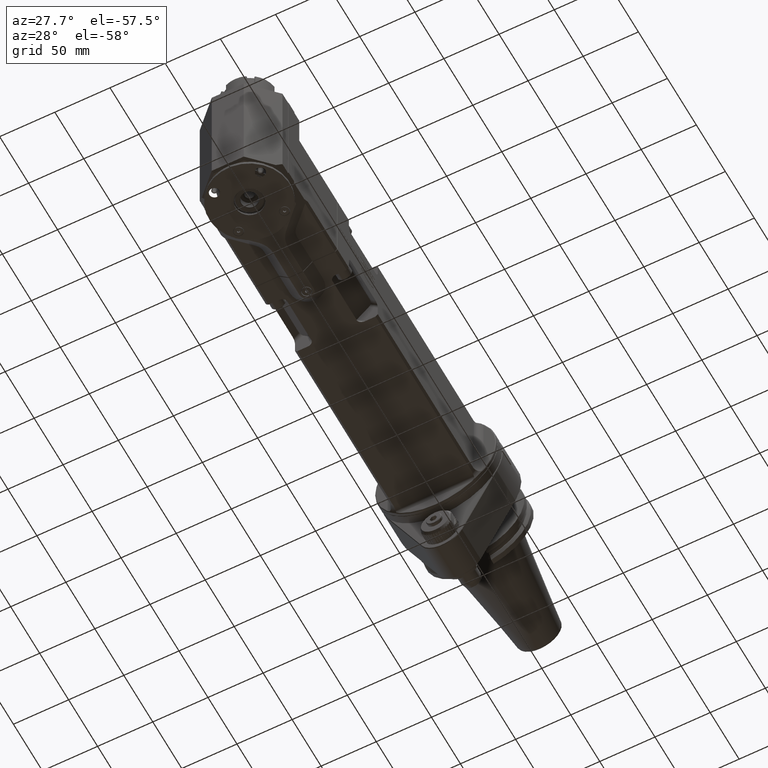
[diagram: clean part render]
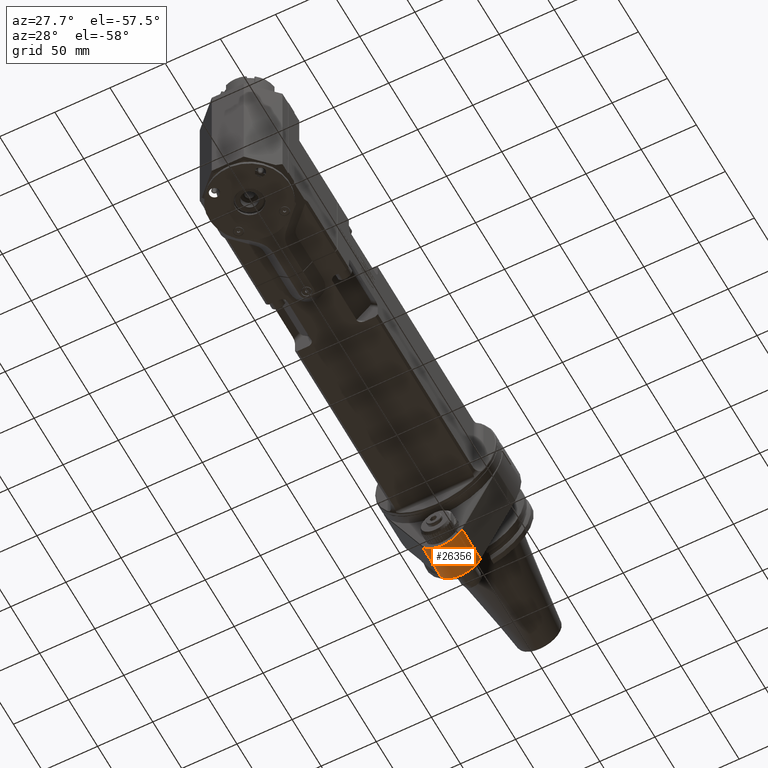
[diagram: same view with one face highlighted and labeled with its STEP entity id]
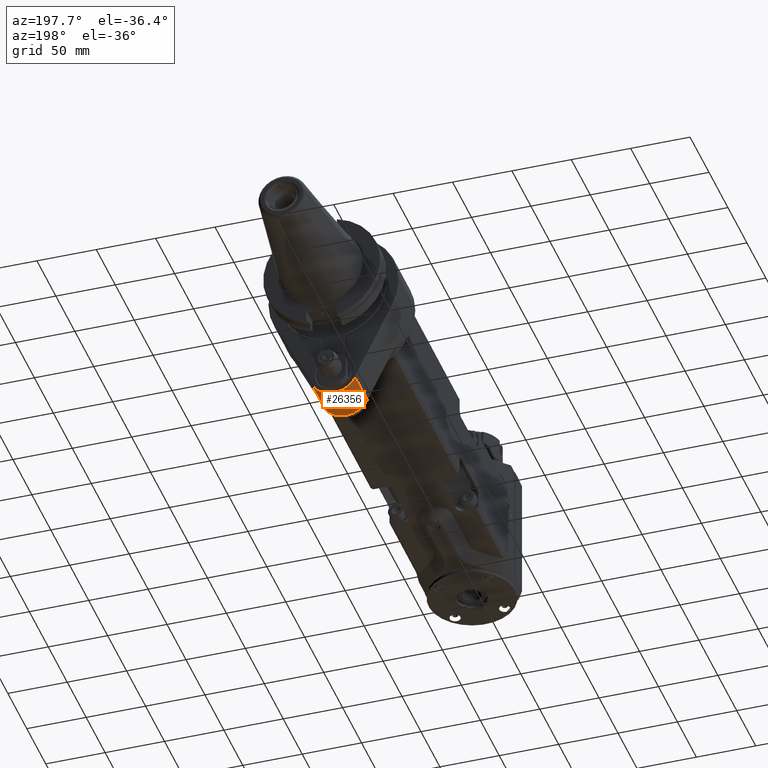
[diagram: same view with one face highlighted and labeled with its STEP entity id]
A machine part, auxiliary view. The second image highlights one B-rep face of the part: STEP entity #26356.
A second angle (auxiliary view) of the same face is appended — the face is thin or edge-on in the first view.
In plain terms, the highlighted cylindrical surface (edge-blend (fillet) strip) has radius 20 mm, axis along (0, 1, 0).
Its self-contained STEP definition (entity closure, byte-faithful):
#3073=LINE('',#52276,#5158);
#3260=LINE('',#53782,#5345);
#5158=VECTOR('',#34415,31.9997523659797);
#5345=VECTOR('',#35152,31.9997524776297);
#5834=CYLINDRICAL_SURFACE('',#28793,20.);
#7299=FACE_OUTER_BOUND('',#8932,.T.);
#8932=EDGE_LOOP('',(#23267,#23268,#23269,#23270));
#9891=CIRCLE('',#28482,20.);
#10040=CIRCLE('',#28792,20.);
#12247=VERTEX_POINT('',#52142);
#12248=VERTEX_POINT('',#52146);
#12287=VERTEX_POINT('',#52274);
#12513=VERTEX_POINT('',#53778);
#15760=EDGE_CURVE('',#12248,#12247,#9891,.T.);
#15816=EDGE_CURVE('',#12287,#12247,#3073,.T.);
#16185=EDGE_CURVE('',#12287,#12513,#10040,.T.);
#16186=EDGE_CURVE('',#12248,#12513,#3260,.T.);
#23267=ORIENTED_EDGE('',*,*,#16185,.T.);
#23268=ORIENTED_EDGE('',*,*,#16186,.F.);
#23269=ORIENTED_EDGE('',*,*,#15760,.T.);
#23270=ORIENTED_EDGE('',*,*,#15816,.F.);
#26356=ADVANCED_FACE('',(#7299),#5834,.T.);
#28482=AXIS2_PLACEMENT_3D('',#52147,#34315,#34316);
#28792=AXIS2_PLACEMENT_3D('',#53780,#35148,#35149);
#28793=AXIS2_PLACEMENT_3D('',#53781,#35150,#35151);
#34315=DIRECTION('center_axis',(0.,1.,0.));
#34316=DIRECTION('ref_axis',(1.,0.,0.));
#34415=DIRECTION('',(3.81080393947804E-7,-0.99999999999991,1.85405221315602E-7));
#35148=DIRECTION('center_axis',(0.,-1.,0.));
#35149=DIRECTION('ref_axis',(1.,0.,0.));
#35150=DIRECTION('center_axis',(0.,1.,0.));
#35151=DIRECTION('ref_axis',(1.,0.,0.));
#35152=DIRECTION('',(-3.82438699266904E-7,0.99999999999991,1.86079929291902E-7));
#52142=CARTESIAN_POINT('',(-17.9843328943923,0.500151595690337,-88.7499827273196));
#52146=CARTESIAN_POINT('',(17.9843682449328,0.500170512042425,-88.7499999331764));
#52147=CARTESIAN_POINT('Origin',(0.,0.500341024091354,-80.));
#52274=CARTESIAN_POINT('',(-17.9843682475779,32.4998292651373,-88.7499999277408));
#52276=CARTESIAN_POINT('',(-17.98435747667,32.49985520783,-88.74999468733));
#53778=CARTESIAN_POINT('',(17.9843685923995,32.4998283294068,-88.7500001053328));
#53780=CARTESIAN_POINT('Origin',(0.,32.499658530269,-80.));
#53781=CARTESIAN_POINT('Origin',(0.,0.,-80.));
#53782=CARTESIAN_POINT('',(17.98435748801,0.5001435280147,-88.74999469957));